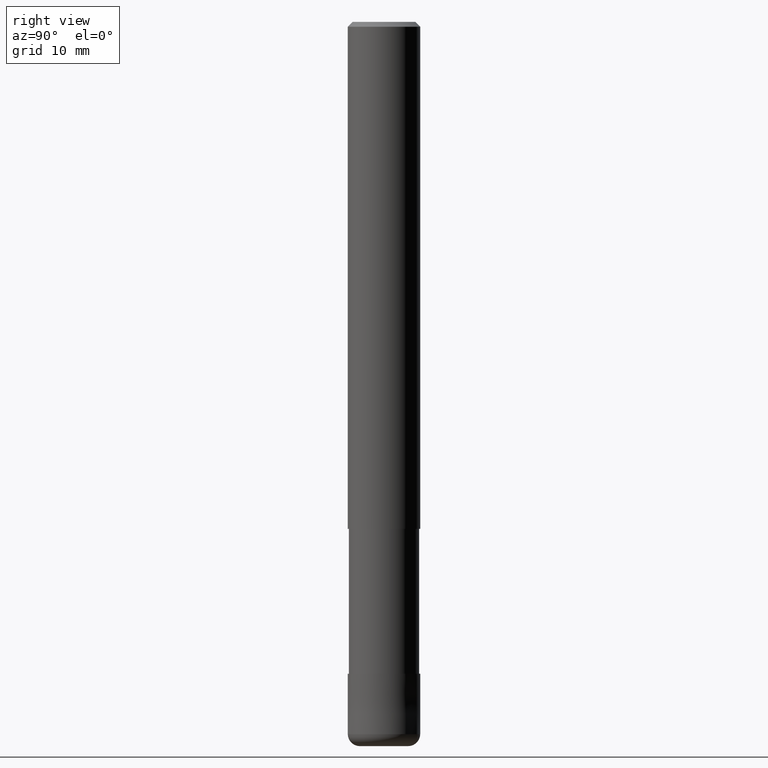
[diagram: clean part render]
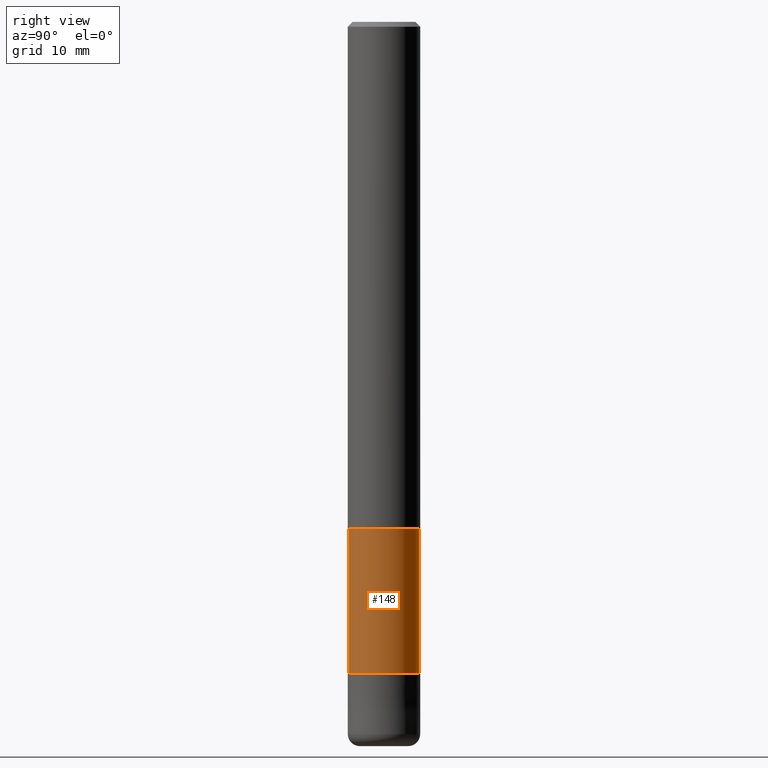
[diagram: same view with one face highlighted and labeled with its STEP entity id]
A machine part, right view. The second image highlights one B-rep face of the part: STEP entity #148.
In plain terms, the highlighted cylindrical surface (edge-blend (fillet) strip) has radius 2.9099 mm, axis along (-0, -0, 1).
Its self-contained STEP definition (entity closure, byte-faithful):
#100=VERTEX_POINT('',#240);
#126=EDGE_CURVE('',#204,#142,#270,.T.);
#142=VERTEX_POINT('',#286);
#148=ADVANCED_FACE('',(#292),#293,.T.);
#154=EDGE_CURVE('',#142,#182,#301,.T.);
#178=EDGE_CURVE('',#204,#100,#329,.T.);
#182=VERTEX_POINT('',#333);
#194=EDGE_CURVE('',#182,#100,#346,.T.);
#204=VERTEX_POINT('',#357);
#240=CARTESIAN_POINT('',(3.56354325930543E-016,-2.90995,-42.0));
#270=LINE('',#426,#427);
#286=CARTESIAN_POINT('',(0.0,2.90995,-54.0));
#292=FACE_OUTER_BOUND('',#450,.T.);
#293=CYLINDRICAL_SURFACE('',#451,2.90995);
#301=CIRCLE('',#460,2.90995);
#329=CIRCLE('',#496,2.90995);
#333=CARTESIAN_POINT('',(3.56354325930543E-016,-2.90995,-54.0));
#346=LINE('',#517,#518);
#357=CARTESIAN_POINT('',(0.0,2.90995,-42.0));
#426=CARTESIAN_POINT('',(-3.56354325930543E-016,2.90995,-48.0));
#427=VECTOR('',#608,1.0);
#450=EDGE_LOOP('',(#617,#618,#619,#620));
#451=AXIS2_PLACEMENT_3D('',#621,#622,#623);
#460=AXIS2_PLACEMENT_3D('',#638,#639,#640);
#496=AXIS2_PLACEMENT_3D('',#680,#681,#682);
#517=CARTESIAN_POINT('',(3.56354325930543E-016,-2.90995,-48.0));
#518=VECTOR('',#697,1.0);
#608=DIRECTION('',(0.0,0.0,-1.0));
#617=ORIENTED_EDGE('',*,*,#126,.F.);
#618=ORIENTED_EDGE('',*,*,#178,.T.);
#619=ORIENTED_EDGE('',*,*,#194,.F.);
#620=ORIENTED_EDGE('',*,*,#154,.F.);
#621=CARTESIAN_POINT('',(0.0,0.0,-48.0));
#622=DIRECTION('',(-0.0,-0.0,1.0));
#623=DIRECTION('',(0.0,1.0,0.0));
#638=CARTESIAN_POINT('',(0.0,0.0,-54.0));
#639=DIRECTION('',(0.0,0.0,-1.0));
#640=DIRECTION('',(0.0,1.0,0.0));
#680=CARTESIAN_POINT('',(0.0,0.0,-42.0));
#681=DIRECTION('',(0.0,0.0,-1.0));
#682=DIRECTION('',(0.0,1.0,0.0));
#697=DIRECTION('',(-0.0,-0.0,1.0));